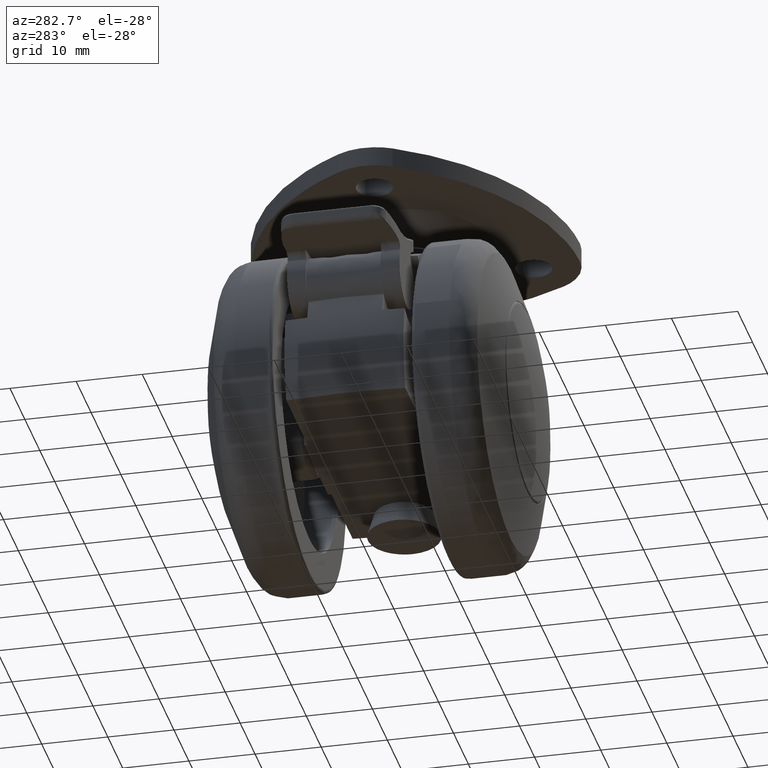
[diagram: clean part render]
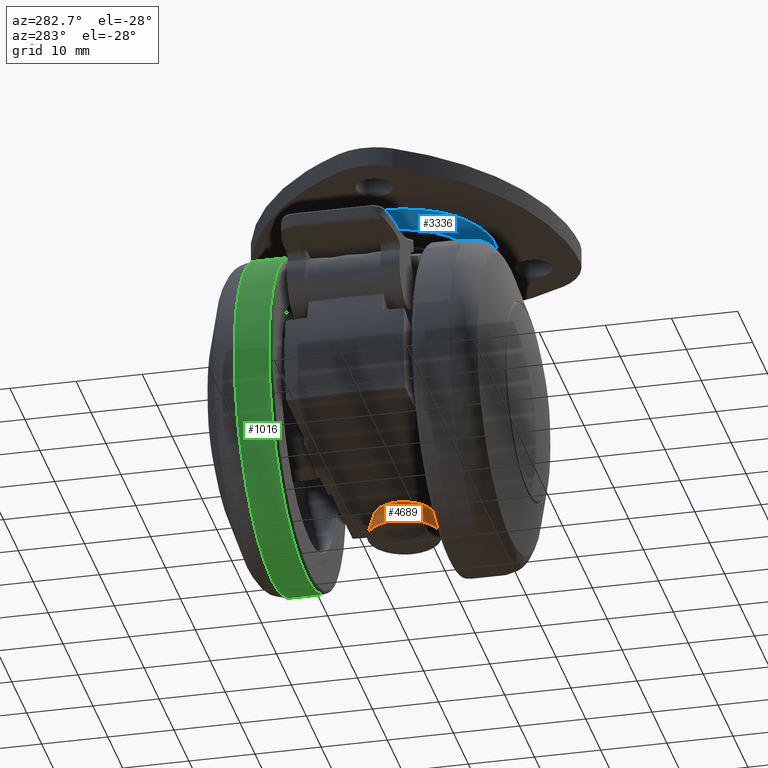
[diagram: same view with three faces highlighted in distinct colors, each labeled with its STEP entity id]
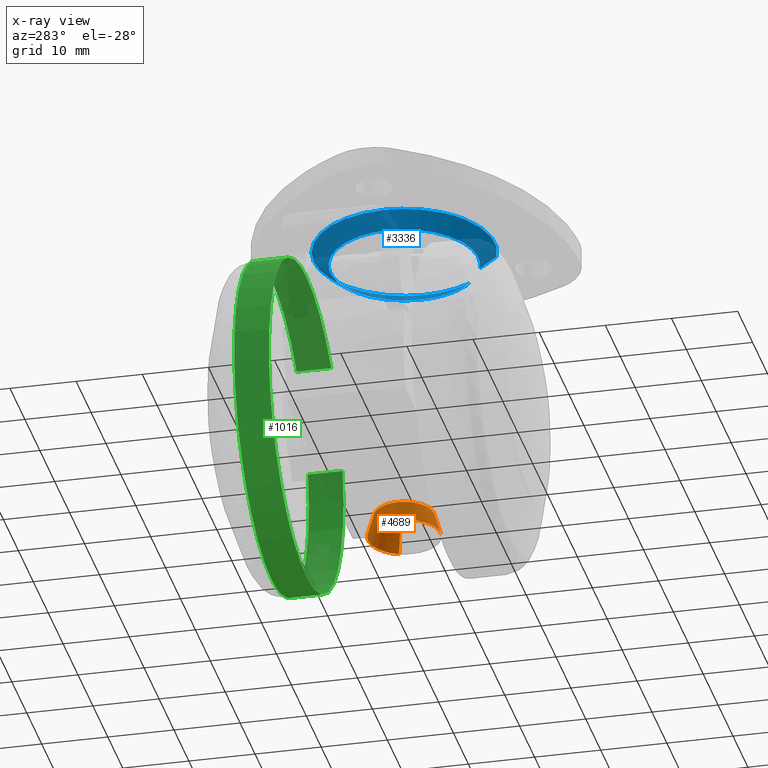
[diagram: x-ray of the same camera — body ghosted, the three highlighted faces saturated]
A machine part, auxiliary view with three faces highlighted in distinct colors.
The next image is the same camera in x-ray (body ghosted, the three faces saturated) — at least one of them is partly hidden behind the body in this view.
Their STEP definitions:

[orange] entity #4689 — the highlighted face is a freeform B-spline surface patch.
#4507=CARTESIAN_POINT('',(21.212646178468539,1.582277922034677,-7.499996596262411));
#4508=VERTEX_POINT('',#4507);
#4524=CARTESIAN_POINT('',(17.274718427916540,-4.491606592897810,-7.500000000000411));
#4525=VERTEX_POINT('',#4524);
#4539=CARTESIAN_POINT('',(17.335766967601611,-5.489741391318247,-11.000000000027489));
#4540=VERTEX_POINT('',#4539);
#4541=CARTESIAN_POINT('',(17.274718427916540,-4.491606592897810,-7.500000000000411));
#4542=CARTESIAN_POINT('',(17.335766967601611,-5.489741391318247,-11.000000000027489));
#4543=QUASI_UNIFORM_CURVE('',1,(#4541,#4542),.UNSPECIFIED.,.F.,.U.);
#4544=EDGE_CURVE('',#4525,#4540,#4543,.T.);
#4561=CARTESIAN_POINT('',(22.148789683261999,1.933898859183989,-11.000000000006230));
#4562=VERTEX_POINT('',#4561);
#4576=CARTESIAN_POINT('',(21.212646178468539,1.582277922034677,-7.499996596262411));
#4577=CARTESIAN_POINT('',(22.148789683261999,1.933898859183989,-11.000000000006230));
#4578=QUASI_UNIFORM_CURVE('',1,(#4576,#4577),.UNSPECIFIED.,.F.,.U.);
#4579=EDGE_CURVE('',#4508,#4562,#4578,.T.);
#4584=CARTESIAN_POINT('',(17.273192214418490,-4.466653222937858,-7.412500000000419));
#4585=CARTESIAN_POINT('',(12.806538991480631,-4.739845437356344,-7.412500000000419));
#4586=CARTESIAN_POINT('',(12.533346777062141,-0.273192214418488,-7.412500000000419));
#4587=CARTESIAN_POINT('',(12.260154562643658,4.193461008519368,-7.412500000000419));
#4588=CARTESIAN_POINT('',(16.726807785581510,4.466653222937853,-7.412500000000419));
#4589=CARTESIAN_POINT('',(20.026753878568716,4.668486572340305,-7.412500000000420));
#4590=CARTESIAN_POINT('',(21.189242515025537,1.573490435402284,-7.412500000000420));
#4591=CARTESIAN_POINT('',(17.337331336267290,-5.515318595529712,-11.089687499999989));
#4592=CARTESIAN_POINT('',(11.822012740737577,-5.852649931796999,-11.089687499999991));
#4593=CARTESIAN_POINT('',(11.484681404470290,-0.337331336267290,-11.089687499999989));
#4594=CARTESIAN_POINT('',(11.147350068203004,5.177987259262419,-11.089687499999991));
#4595=CARTESIAN_POINT('',(16.662668663732710,5.515318595529707,-11.089687499999989));
#4596=CARTESIAN_POINT('',(20.737364670450489,5.764537679617282,-11.089687499999993));
#4597=CARTESIAN_POINT('',(22.172778362477651,1.942909069747387,-11.089687499999988));
#4605=(BOUNDED_SURFACE()B_SPLINE_SURFACE(2,1,((#4584,#4591),(#4585,#4592),(#4586,#4593),(#4587,#4594),(#4588,#4595),(#4589,#4596),(#4590,#4597)),.UNSPECIFIED.,.F.,.F.,.U.)B_SPLINE_SURFACE_WITH_KNOTS((3,2,2,3),(2,2),(0.0,9.155155262351137,18.310310524702270,25.634434734583181),(0.0,3.824332726212229),.UNSPECIFIED.)GEOMETRIC_REPRESENTATION_ITEM()RATIONAL_B_SPLINE_SURFACE(((1.0,1.0),(0.707106781186548,0.707106781186548),(1.0,1.0),(0.707106781186548,0.707106781186548),(1.0,1.0),(0.765685424949238,0.765685424949238),(0.906274169979695,0.906274169979695)))REPRESENTATION_ITEM('')SURFACE());
#4606=CARTESIAN_POINT('',(16.468845944015040,4.468542868632984,-7.500000000000411));
#4607=VERTEX_POINT('',#4606);
#4608=CARTESIAN_POINT('',(16.468845944015044,4.468542868632984,-7.500000000000411));
#4609=CARTESIAN_POINT('',(16.733491427178524,4.499999987087755,-7.499999871438423));
#4610=CARTESIAN_POINT('',(16.999999928312619,4.499999973067092,-7.499999731878273));
#4611=CARTESIAN_POINT('',(20.116744743639103,4.499999809099221,-7.499998099760081));
#4612=CARTESIAN_POINT('',(21.212646178468539,1.582277922034677,-7.499996596262411));
#4620=(BOUNDED_CURVE()B_SPLINE_CURVE(2,(#4608,#4609,#4610,#4611,#4612),.UNSPECIFIED.,.F.,.U.)B_SPLINE_CURVE_WITH_KNOTS((3,2,3),(0.229562473513409,0.250000000000000,0.440284269163032),.UNSPECIFIED.)CURVE()GEOMETRIC_REPRESENTATION_ITEM()RATIONAL_B_SPLINE_CURVE((0.956026754183505,0.976055948331029,1.0,0.777068111661096,0.893499674887817))REPRESENTATION_ITEM(''));
#4621=EDGE_CURVE('',#4607,#4508,#4620,.T.);
#4622=ORIENTED_EDGE('',*,*,#4621,.T.);
#4623=ORIENTED_EDGE('',*,*,#4579,.T.);
#4624=CARTESIAN_POINT('',(11.500000000000110,-2.755364E-015,-11.0));
#4625=VERTEX_POINT('',#4624);
#4626=CARTESIAN_POINT('',(11.500000000000110,-2.755364E-015,-11.0));
#4627=CARTESIAN_POINT('',(11.500000000000110,5.499999999999888,-11.0));
#4628=CARTESIAN_POINT('',(17.0,5.499999999999887,-11.0));
#4629=CARTESIAN_POINT('',(20.809352776272192,5.499999999999887,-11.0));
#4630=CARTESIAN_POINT('',(22.148789683261999,1.933898859183988,-11.000000000006228));
#4638=(BOUNDED_CURVE()B_SPLINE_CURVE(2,(#4626,#4627,#4628,#4629,#4630),.UNSPECIFIED.,.F.,.U.)B_SPLINE_CURVE_WITH_KNOTS((3,2,3),(0.0,0.250000000000000,0.440284170897084),.UNSPECIFIED.)CURVE()GEOMETRIC_REPRESENTATION_ITEM()RATIONAL_B_SPLINE_CURVE((1.0,0.707106781186548,1.0,0.777068226786816,0.893499554633531))REPRESENTATION_ITEM(''));
#4639=EDGE_CURVE('',#4625,#4562,#4638,.T.);
#4640=ORIENTED_EDGE('',*,*,#4639,.F.);
#4641=CARTESIAN_POINT('',(17.335766967601604,-5.489741391318248,-11.000000000027487));
#4642=CARTESIAN_POINT('',(17.168040198302108,-5.499999999999893,-11.0));
#4643=CARTESIAN_POINT('',(17.0,-5.499999999999893,-11.0));
#4644=CARTESIAN_POINT('',(11.500000000000110,-5.499999999999893,-11.0));
#4645=CARTESIAN_POINT('',(11.500000000000110,-2.755364E-015,-11.0));
#4653=(BOUNDED_CURVE()B_SPLINE_CURVE(2,(#4641,#4642,#4643,#4644,#4645),.UNSPECIFIED.,.F.,.U.)B_SPLINE_CURVE_WITH_KNOTS((3,2,3),(0.739332962231947,0.750000000000000,1.0),.UNSPECIFIED.)CURVE()GEOMETRIC_REPRESENTATION_ITEM()RATIONAL_B_SPLINE_CURVE((0.976072041651724,0.987502787891641,1.0,0.707106781186548,1.0))REPRESENTATION_ITEM(''));
#4654=EDGE_CURVE('',#4540,#4625,#4653,.T.);
#4655=ORIENTED_EDGE('',*,*,#4654,.F.);
#4656=ORIENTED_EDGE('',*,*,#4544,.F.);
#4657=CARTESIAN_POINT('',(12.500000000000000,-2.755364E-015,-7.500000000000410));
#4658=VERTEX_POINT('',#4657);
#4659=CARTESIAN_POINT('',(17.274718427916540,-4.491606592897810,-7.500000000000411));
#4660=CARTESIAN_POINT('',(17.137487434863061,-4.500000000000004,-7.500000000000410));
#4661=CARTESIAN_POINT('',(17.0,-4.500000000000003,-7.500000000000410));
#4662=CARTESIAN_POINT('',(12.499999999999998,-4.500000000000004,-7.500000000000410));
#4663=CARTESIAN_POINT('',(12.500000000000000,-2.755364E-015,-7.500000000000410));
#4671=(BOUNDED_CURVE()B_SPLINE_CURVE(2,(#4659,#4660,#4661,#4662,#4663),.UNSPECIFIED.,.F.,.U.)B_SPLINE_CURVE_WITH_KNOTS((3,2,3),(0.739332962240481,0.750000000000000,1.0),.UNSPECIFIED.)CURVE()GEOMETRIC_REPRESENTATION_ITEM()RATIONAL_B_SPLINE_CURVE((0.976072041670013,0.987502787901639,1.0,0.707106781186547,1.0))REPRESENTATION_ITEM(''));
#4672=EDGE_CURVE('',#4525,#4658,#4671,.T.);
#4673=ORIENTED_EDGE('',*,*,#4672,.T.);
#4674=CARTESIAN_POINT('',(12.500000000000000,-2.755364E-015,-7.500000000000410));
#4675=CARTESIAN_POINT('',(12.500000000000000,3.996785366727927,-7.500000000000410));
#4676=CARTESIAN_POINT('',(16.468845944015040,4.468542868632984,-7.500000000000411));
#4684=(BOUNDED_CURVE()B_SPLINE_CURVE(2,(#4674,#4675,#4676),.UNSPECIFIED.,.F.,.U.)B_SPLINE_CURVE_WITH_KNOTS((3,3),(0.0,0.229562473513409),.UNSPECIFIED.)CURVE()GEOMETRIC_REPRESENTATION_ITEM()RATIONAL_B_SPLINE_CURVE((1.0,0.731050832855518,0.956026754183505))REPRESENTATION_ITEM(''));
#4685=EDGE_CURVE('',#4658,#4607,#4684,.T.);
#4686=ORIENTED_EDGE('',*,*,#4685,.T.);
#4687=EDGE_LOOP('',(#4622,#4623,#4640,#4655,#4656,#4673,#4686));
#4688=FACE_OUTER_BOUND('',#4687,.T.);
#4689=ADVANCED_FACE('',(#4688),#4605,.T.);

[blue] entity #3336 — the highlighted face is a freeform B-spline surface patch.
#3136=CARTESIAN_POINT('',(26.403887196713512,-5.919918080743028,34.357549545205494));
#3137=CARTESIAN_POINT('',(29.207983623120874,-1.465564807102363,34.357549545205508));
#3138=CARTESIAN_POINT('',(27.537856966151931,3.525917618456758,34.357549545205508));
#3139=CARTESIAN_POINT('',(24.011939347695172,14.063774584608689,34.357549545205508));
#3140=CARTESIAN_POINT('',(13.474082381543241,10.537856966151930,34.357549545205508));
#3141=CARTESIAN_POINT('',(2.936225415391313,7.011939347695170,34.357549545205508));
#3142=CARTESIAN_POINT('',(6.462143033848072,-3.525917618456758,34.357549545205508));
#3143=CARTESIAN_POINT('',(9.988060652304831,-14.063774584608689,34.357549545205508));
#3144=CARTESIAN_POINT('',(20.525917618456759,-10.537856966151930,34.357549545205508));
#3145=CARTESIAN_POINT('',(28.641494373891039,-7.328532508870477,36.584129558004648));
#3146=CARTESIAN_POINT('',(32.112811297309435,-1.814288506397388,36.584129558004655));
#3147=CARTESIAN_POINT('',(30.045286488251300,4.364891800532531,36.584129558004648));
#3148=CARTESIAN_POINT('',(25.680394687718778,17.410178288783833,36.584129558004648));
#3149=CARTESIAN_POINT('',(12.635108199467471,13.045286488251300,36.584129558004648));
#3150=CARTESIAN_POINT('',(-0.410178288783834,8.680394687718772,36.584129558004648));
#3151=CARTESIAN_POINT('',(3.954713511748697,-4.364891800532531,36.584129558004648));
#3152=CARTESIAN_POINT('',(8.319605312281230,-17.410178288783833,36.584129558004648));
#3153=CARTESIAN_POINT('',(21.364891800532529,-13.045286488251300,36.584129558004648));
#3161=(BOUNDED_SURFACE()B_SPLINE_SURFACE(2,1,((#3136,#3145),(#3137,#3146),(#3138,#3147),(#3139,#3148),(#3140,#3149),(#3141,#3150),(#3142,#3151),(#3143,#3152),(#3144,#3153)),.UNSPECIFIED.,.F.,.F.,.U.)B_SPLINE_SURFACE_WITH_KNOTS((3,2,2,2,3),(2,2),(0.0,12.763487878571180,35.555430518876847,58.347373159182517,81.139315799488188),(0.0,3.456694814397395),.UNSPECIFIED.)GEOMETRIC_REPRESENTATION_ITEM()RATIONAL_B_SPLINE_SURFACE(((0.855662221768731,0.855662221768731),(0.835979797464467,0.835979797464467),(1.0,1.0),(0.707106781186548,0.707106781186548),(1.0,1.0),(0.707106781186548,0.707106781186548),(1.0,1.0),(0.707106781186548,0.707106781186548),(1.0,1.0)))REPRESENTATION_ITEM('')SURFACE());
#3162=CARTESIAN_POINT('',(26.457131865014560,-5.953436568243797,34.410531818202607));
#3163=VERTEX_POINT('',#3162);
#3164=CARTESIAN_POINT('',(28.175005596610639,0.0,34.410531818198947));
#3165=VERTEX_POINT('',#3164);
#3166=CARTESIAN_POINT('',(26.457131865014553,-5.953436568243797,34.410531818202621));
#3167=CARTESIAN_POINT('',(28.175005596610649,-3.224565903256855,34.410531818198947));
#3168=CARTESIAN_POINT('',(28.175005596610639,0.0,34.410531818198947));
#3176=(BOUNDED_CURVE()B_SPLINE_CURVE(2,(#3166,#3167,#3168),.UNSPECIFIED.,.F.,.U.)B_SPLINE_CURVE_WITH_KNOTS((3,3),(0.408873249228883,0.500000000000000),.UNSPECIFIED.)CURVE()GEOMETRIC_REPRESENTATION_ITEM()RATIONAL_B_SPLINE_CURVE((0.864307464336916,0.893238370586545,1.0))REPRESENTATION_ITEM(''));
#3177=EDGE_CURVE('',#3163,#3165,#3176,.T.);
#3178=ORIENTED_EDGE('',*,*,#3177,.T.);
#3179=CARTESIAN_POINT('',(9.985545524765087,8.699320576533458,34.410531817979063));
#3180=VERTEX_POINT('',#3179);
#3181=CARTESIAN_POINT('',(28.175005596610639,0.0,34.410531818198947));
#3182=CARTESIAN_POINT('',(28.175005596610639,11.175005596610639,34.410531818198947));
#3183=CARTESIAN_POINT('',(17.0,11.175005596610641,34.410531818198947));
#3184=CARTESIAN_POINT('',(13.055888016705632,11.175005596610641,34.410531818198962));
#3185=CARTESIAN_POINT('',(9.985545524765087,8.699320576533458,34.410531817979063));
#3193=(BOUNDED_CURVE()B_SPLINE_CURVE(2,(#3181,#3182,#3183,#3184,#3185),.UNSPECIFIED.,.F.,.U.)B_SPLINE_CURVE_WITH_KNOTS((3,2,3),(0.500000000000000,0.750000000000000,0.858867648264642),.UNSPECIFIED.)CURVE()GEOMETRIC_REPRESENTATION_ITEM()RATIONAL_B_SPLINE_CURVE((1.0,0.707106781186547,1.0,0.872453616300472,0.855992631305163))REPRESENTATION_ITEM(''));
#3194=EDGE_CURVE('',#3165,#3180,#3193,.T.);
#3195=ORIENTED_EDGE('',*,*,#3194,.T.);
#3196=CARTESIAN_POINT('',(5.824994403389360,0.0,34.410531818198947));
#3197=VERTEX_POINT('',#3196);
#3198=CARTESIAN_POINT('',(9.985545524765087,8.699320576533458,34.410531817979056));
#3199=CARTESIAN_POINT('',(5.824994403389360,5.344576240660055,34.410531818198947));
#3200=CARTESIAN_POINT('',(5.824994403389360,0.0,34.410531818198947));
#3208=(BOUNDED_CURVE()B_SPLINE_CURVE(2,(#3198,#3199,#3200),.UNSPECIFIED.,.F.,.U.)B_SPLINE_CURVE_WITH_KNOTS((3,3),(0.858867648264641,1.0),.UNSPECIFIED.)CURVE()GEOMETRIC_REPRESENTATION_ITEM()RATIONAL_B_SPLINE_CURVE((0.855992631305163,0.834653164886074,1.0))REPRESENTATION_ITEM(''));
#3209=EDGE_CURVE('',#3180,#3197,#3208,.T.);
#3210=ORIENTED_EDGE('',*,*,#3209,.T.);
#3211=CARTESIAN_POINT('',(7.913745881668236,-6.505438968679894,34.410531817966941));
#3212=VERTEX_POINT('',#3211);
#3213=CARTESIAN_POINT('',(5.824994403389360,0.0,34.410531818198947));
#3214=CARTESIAN_POINT('',(5.824994403389360,-3.588045260163343,34.410531818198940));
#3215=CARTESIAN_POINT('',(7.913745881668235,-6.505438968679895,34.410531817966941));
#3223=(BOUNDED_CURVE()B_SPLINE_CURVE(2,(#3213,#3214,#3215),.UNSPECIFIED.,.F.,.U.)B_SPLINE_CURVE_WITH_KNOTS((3,3),(0.0,0.100192975578352),.UNSPECIFIED.)CURVE()GEOMETRIC_REPRESENTATION_ITEM()RATIONAL_B_SPLINE_CURVE((1.0,0.882616627521435,0.859321170019266))REPRESENTATION_ITEM(''));
#3224=EDGE_CURVE('',#3197,#3212,#3223,.T.);
#3225=ORIENTED_EDGE('',*,*,#3224,.T.);
#3226=CARTESIAN_POINT('',(20.545881311159601,-10.597522154327059,34.410531818199132));
#3227=VERTEX_POINT('',#3226);
#3228=CARTESIAN_POINT('',(7.913745881668235,-6.505438968679895,34.410531817966941));
#3229=CARTESIAN_POINT('',(11.256991658187072,-11.175005596610639,34.410531818198947));
#3230=CARTESIAN_POINT('',(17.0,-11.175005596610641,34.410531818198947));
#3231=CARTESIAN_POINT('',(18.819965230975185,-11.175005596610644,34.410531818198947));
#3232=CARTESIAN_POINT('',(20.545881311159604,-10.597522154327063,34.410531818199139));
#3240=(BOUNDED_CURVE()B_SPLINE_CURVE(2,(#3228,#3229,#3230,#3231,#3232),.UNSPECIFIED.,.F.,.U.)B_SPLINE_CURVE_WITH_KNOTS((3,2,3),(0.100192975578352,0.250000000000000,0.303941020746011),.UNSPECIFIED.)CURVE()GEOMETRIC_REPRESENTATION_ITEM()RATIONAL_B_SPLINE_CURVE((0.859321170019266,0.824490153665112,1.0,0.936804163230471,0.900879109998915))REPRESENTATION_ITEM(''));
#3241=EDGE_CURVE('',#3212,#3227,#3240,.T.);
#3242=ORIENTED_EDGE('',*,*,#3241,.T.);
#3243=CARTESIAN_POINT('',(21.344429015192819,-12.984129669330381,36.529822727269192));
#3244=VERTEX_POINT('',#3243);
#3245=CARTESIAN_POINT('',(20.545881311159601,-10.597522154327059,34.410531818199132));
#3246=CARTESIAN_POINT('',(21.344429015192819,-12.984129669330381,36.529822727269192));
#3247=QUASI_UNIFORM_CURVE('',1,(#3245,#3246),.UNSPECIFIED.,.F.,.U.);
#3248=EDGE_CURVE('',#3227,#3244,#3247,.T.);
#3249=ORIENTED_EDGE('',*,*,#3248,.T.);
#3250=CARTESIAN_POINT('',(5.867482419215962,-7.970491772100814,36.529822728424179));
#3251=VERTEX_POINT('',#3250);
#3252=CARTESIAN_POINT('',(21.344429015192826,-12.984129669330384,36.529822727269192));
#3253=CARTESIAN_POINT('',(19.229829219395782,-13.691664863630084,36.529822727266968));
#3254=CARTESIAN_POINT('',(17.0,-13.691664863630081,36.529822727266946));
#3255=CARTESIAN_POINT('',(9.963641508225006,-13.691664863630088,36.529822727266954));
#3256=CARTESIAN_POINT('',(5.867482419215962,-7.970491772100814,36.529822728424186));
#3264=(BOUNDED_CURVE()B_SPLINE_CURVE(2,(#3252,#3253,#3254,#3255,#3256),.UNSPECIFIED.,.F.,.U.)B_SPLINE_CURVE_WITH_KNOTS((3,2,3),(0.196058979253457,0.250000000000000,0.399807024421978),.UNSPECIFIED.)CURVE()GEOMETRIC_REPRESENTATION_ITEM()RATIONAL_B_SPLINE_CURVE((0.900879109998206,0.936804163229847,1.0,0.824490153664726,0.859321170019419))REPRESENTATION_ITEM(''));
#3265=EDGE_CURVE('',#3244,#3251,#3264,.T.);
#3266=ORIENTED_EDGE('',*,*,#3265,.T.);
#3267=CARTESIAN_POINT('',(3.308335136369921,0.0,36.529822727266946));
#3268=VERTEX_POINT('',#3267);
#3269=CARTESIAN_POINT('',(5.867482419215962,-7.970491772100814,36.529822728424186));
#3270=CARTESIAN_POINT('',(3.308335136369922,-4.396088466605304,36.529822727266946));
#3271=CARTESIAN_POINT('',(3.308335136369921,0.0,36.529822727266946));
#3279=(BOUNDED_CURVE()B_SPLINE_CURVE(2,(#3269,#3270,#3271),.UNSPECIFIED.,.F.,.U.)B_SPLINE_CURVE_WITH_KNOTS((3,3),(0.399807024421978,0.500000000000000),.UNSPECIFIED.)CURVE()GEOMETRIC_REPRESENTATION_ITEM()RATIONAL_B_SPLINE_CURVE((0.859321170019419,0.882616627521821,1.0))REPRESENTATION_ITEM(''));
#3280=EDGE_CURVE('',#3251,#3268,#3279,.T.);
#3281=ORIENTED_EDGE('',*,*,#3280,.T.);
#3282=CARTESIAN_POINT('',(8.405860243021648,10.658444942482660,36.529822727772768));
#3283=VERTEX_POINT('',#3282);
#3284=CARTESIAN_POINT('',(3.308335136369921,0.0,36.529822727266946));
#3285=CARTESIAN_POINT('',(3.308335136369923,6.548197769840038,36.529822727266954));
#3286=CARTESIAN_POINT('',(8.405860243021648,10.658444942482657,36.529822727772768));
#3294=(BOUNDED_CURVE()B_SPLINE_CURVE(2,(#3284,#3285,#3286),.UNSPECIFIED.,.F.,.U.)B_SPLINE_CURVE_WITH_KNOTS((3,3),(0.500000000000000,0.641132351736064),.UNSPECIFIED.)CURVE()GEOMETRIC_REPRESENTATION_ITEM()RATIONAL_B_SPLINE_CURVE((1.0,0.834653164885247,0.855992631305377))REPRESENTATION_ITEM(''));
#3295=EDGE_CURVE('',#3268,#3283,#3294,.T.);
#3296=ORIENTED_EDGE('',*,*,#3295,.T.);
#3297=CARTESIAN_POINT('',(30.691664863630081,0.0,36.529822727266946));
#3298=VERTEX_POINT('',#3297);
#3299=CARTESIAN_POINT('',(8.405860243021648,10.658444942482655,36.529822727772768));
#3300=CARTESIAN_POINT('',(12.167657054608439,13.691664863630081,36.529822727266954));
#3301=CARTESIAN_POINT('',(17.0,13.691664863630081,36.529822727266946));
#3302=CARTESIAN_POINT('',(30.691664863630077,13.691664863630079,36.529822727266954));
#3303=CARTESIAN_POINT('',(30.691664863630081,0.0,36.529822727266946));
#3311=(BOUNDED_CURVE()B_SPLINE_CURVE(2,(#3299,#3300,#3301,#3302,#3303),.UNSPECIFIED.,.F.,.U.)B_SPLINE_CURVE_WITH_KNOTS((3,2,3),(0.641132351736063,0.750000000000000,1.0),.UNSPECIFIED.)CURVE()GEOMETRIC_REPRESENTATION_ITEM()RATIONAL_B_SPLINE_CURVE((0.855992631305377,0.872453616301299,1.0,0.707106781186547,1.0))REPRESENTATION_ITEM(''));
#3312=EDGE_CURVE('',#3283,#3298,#3311,.T.);
#3313=ORIENTED_EDGE('',*,*,#3312,.T.);
#3314=CARTESIAN_POINT('',(28.586918587885592,-7.294176058731744,36.529822727270087));
#3315=VERTEX_POINT('',#3314);
#3316=CARTESIAN_POINT('',(30.691664863630081,0.0,36.529822727266946));
#3317=CARTESIAN_POINT('',(30.691664863630084,-3.950751997038950,36.529822727266954));
#3318=CARTESIAN_POINT('',(28.586918587885595,-7.294176058731744,36.529822727270087));
#3326=(BOUNDED_CURVE()B_SPLINE_CURVE(2,(#3316,#3317,#3318),.UNSPECIFIED.,.F.,.U.)B_SPLINE_CURVE_WITH_KNOTS((3,3),(0.0,0.091126750770471),.UNSPECIFIED.)CURVE()GEOMETRIC_REPRESENTATION_ITEM()RATIONAL_B_SPLINE_CURVE((1.0,0.893238370587302,0.864307464337326))REPRESENTATION_ITEM(''));
#3327=EDGE_CURVE('',#3298,#3315,#3326,.T.);
#3328=ORIENTED_EDGE('',*,*,#3327,.T.);
#3329=CARTESIAN_POINT('',(26.457131865014560,-5.953436568243797,34.410531818202607));
#3330=CARTESIAN_POINT('',(28.586918587885592,-7.294176058731744,36.529822727270087));
#3331=QUASI_UNIFORM_CURVE('',1,(#3329,#3330),.UNSPECIFIED.,.F.,.U.);
#3332=EDGE_CURVE('',#3163,#3315,#3331,.T.);
#3333=ORIENTED_EDGE('',*,*,#3332,.F.);
#3334=EDGE_LOOP('',(#3178,#3195,#3210,#3225,#3242,#3249,#3266,#3281,#3296,#3313,#3328,#3333));
#3335=FACE_OUTER_BOUND('',#3334,.T.);
#3336=ADVANCED_FACE('',(#3335),#3161,.T.);

[green] entity #1016 — the highlighted face is a freeform B-spline surface patch.
#816=CARTESIAN_POINT('',(-24.456277193517327,-10.868760374954357,5.185605638095166));
#817=CARTESIAN_POINT('',(-27.125405001298383,-10.868760374954357,-7.402495750192665));
#818=CARTESIAN_POINT('',(-18.431933420253088,-10.868760374954361,-16.889755190391501));
#819=CARTESIAN_POINT('',(-1.542178229861583,-10.868760374954357,-35.321688610644600));
#820=CARTESIAN_POINT('',(16.889755190391512,-10.868760374954361,-18.431933420253088));
#821=CARTESIAN_POINT('',(35.321688610644600,-10.868760374954357,-1.542178229861581));
#822=CARTESIAN_POINT('',(18.431933420253088,-10.868760374954361,16.889755190391512));
#823=CARTESIAN_POINT('',(1.542178229861583,-10.868760374954357,35.321688610644600));
#824=CARTESIAN_POINT('',(-16.889755190391512,-10.868760374954361,18.431933420253099));
#825=CARTESIAN_POINT('',(-24.456277193517327,-16.384105615660754,5.185605638095166));
#826=CARTESIAN_POINT('',(-27.125405001298383,-16.384105615660754,-7.402495750192665));
#827=CARTESIAN_POINT('',(-18.431933420253088,-16.384105615660751,-16.889755190391501));
#828=CARTESIAN_POINT('',(-1.542178229861583,-16.384105615660761,-35.321688610644600));
#829=CARTESIAN_POINT('',(16.889755190391512,-16.384105615660751,-18.431933420253088));
#830=CARTESIAN_POINT('',(35.321688610644600,-16.384105615660761,-1.542178229861581));
#831=CARTESIAN_POINT('',(18.431933420253088,-16.384105615660751,16.889755190391512));
#832=CARTESIAN_POINT('',(1.542178229861583,-16.384105615660761,35.321688610644600));
#833=CARTESIAN_POINT('',(-16.889755190391512,-16.384105615660751,18.431933420253099));
#841=(BOUNDED_SURFACE()B_SPLINE_SURFACE(2,1,((#816,#825),(#817,#826),(#818,#827),(#819,#828),(#820,#829),(#821,#830),(#822,#831),(#823,#832),(#824,#833)),.UNSPECIFIED.,.F.,.F.,.U.)B_SPLINE_SURFACE_WITH_KNOTS((3,2,2,2,3),(2,2),(0.0,24.852813742385699,66.274169979695202,107.695526217004700,149.116882454314210),(0.0,5.515345240706400),.UNSPECIFIED.)GEOMETRIC_REPRESENTATION_ITEM()RATIONAL_B_SPLINE_SURFACE(((0.859411254969543,0.859411254969543),(0.824264068711928,0.824264068711928),(1.0,1.0),(0.707106781186548,0.707106781186548),(1.0,1.0),(0.707106781186548,0.707106781186548),(1.0,1.0),(0.707106781186548,0.707106781186548),(1.0,1.0)))REPRESENTATION_ITEM('')SURFACE());
#842=CARTESIAN_POINT('',(-24.456279230536150,-10.999999999964761,5.185596031117166));
#843=VERTEX_POINT('',#842);
#844=CARTESIAN_POINT('',(-24.998026105095359,-10.999999999956289,0.314150997086708));
#845=VERTEX_POINT('',#844);
#846=CARTESIAN_POINT('',(-24.456279230536150,-10.999999999964761,5.185596031117166));
#847=CARTESIAN_POINT('',(-24.967080987085478,-10.999999999960654,2.776555620986991));
#848=CARTESIAN_POINT('',(-24.998026105095363,-10.999999999956293,0.314150997086708));
#856=(BOUNDED_CURVE()B_SPLINE_CURVE(2,(#846,#847,#848),.UNSPECIFIED.,.F.,.U.)B_SPLINE_CURVE_WITH_KNOTS((3,3),(0.714472189735848,0.747784295921687),.UNSPECIFIED.)CURVE()GEOMETRIC_REPRESENTATION_ITEM()RATIONAL_B_SPLINE_CURVE((0.928583473766521,0.956518523810324,0.994854295643917))REPRESENTATION_ITEM(''));
#857=EDGE_CURVE('',#843,#845,#856,.T.);
#858=ORIENTED_EDGE('',*,*,#857,.T.);
#859=CARTESIAN_POINT('',(0.0,-11.0,-25.0));
#860=VERTEX_POINT('',#859);
#861=CARTESIAN_POINT('',(-24.998026105095359,-10.999999999956293,0.314150997086708));
#862=CARTESIAN_POINT('',(-24.999999999999996,-11.000000000000004,0.157081699800146));
#863=CARTESIAN_POINT('',(-25.0,-11.0,1.789254E-015));
#864=CARTESIAN_POINT('',(-25.000000000000004,-11.0,-25.000000000000004));
#865=CARTESIAN_POINT('',(0.0,-11.0,-25.0));
#873=(BOUNDED_CURVE()B_SPLINE_CURVE(2,(#861,#862,#863,#864,#865),.UNSPECIFIED.,.F.,.U.)B_SPLINE_CURVE_WITH_KNOTS((3,2,3),(0.747784295921687,0.750000000000000,1.0),.UNSPECIFIED.)CURVE()GEOMETRIC_REPRESENTATION_ITEM()RATIONAL_B_SPLINE_CURVE((0.994854295643918,0.997404141202260,1.0,0.707106781186547,1.0))REPRESENTATION_ITEM(''));
#874=EDGE_CURVE('',#845,#860,#873,.T.);
#875=ORIENTED_EDGE('',*,*,#874,.T.);
#876=CARTESIAN_POINT('',(24.939141846008731,-10.999999999974751,-1.743331289415805));
#877=VERTEX_POINT('',#876);
#878=CARTESIAN_POINT('',(0.0,-11.0,-25.0));
#879=CARTESIAN_POINT('',(23.313421181609719,-11.0,-24.999999999999993));
#880=CARTESIAN_POINT('',(24.939141846008734,-10.999999999974751,-1.743331289415806));
#888=(BOUNDED_CURVE()B_SPLINE_CURVE(2,(#878,#879,#880),.UNSPECIFIED.,.F.,.U.)B_SPLINE_CURVE_WITH_KNOTS((3,3),(0.0,0.237833686534724),.UNSPECIFIED.)CURVE()GEOMETRIC_REPRESENTATION_ITEM()RATIONAL_B_SPLINE_CURVE((1.0,0.721360504034300,0.972879876386199))REPRESENTATION_ITEM(''));
#889=EDGE_CURVE('',#860,#877,#888,.T.);
#890=ORIENTED_EDGE('',*,*,#889,.T.);
#891=CARTESIAN_POINT('',(0.0,-11.0,25.0));
#892=VERTEX_POINT('',#891);
#893=CARTESIAN_POINT('',(24.939141846008731,-10.999999999974753,-1.743331289415805));
#894=CARTESIAN_POINT('',(25.000000000000004,-10.999999999999996,-0.872727896897664));
#895=CARTESIAN_POINT('',(25.0,-11.0,1.789254E-015));
#896=CARTESIAN_POINT('',(25.000000000000004,-11.0,25.000000000000004));
#897=CARTESIAN_POINT('',(0.0,-11.0,25.0));
#905=(BOUNDED_CURVE()B_SPLINE_CURVE(2,(#893,#894,#895,#896,#897),.UNSPECIFIED.,.F.,.U.)B_SPLINE_CURVE_WITH_KNOTS((3,2,3),(0.237833686534724,0.250000000000000,0.500000000000000),.UNSPECIFIED.)CURVE()GEOMETRIC_REPRESENTATION_ITEM()RATIONAL_B_SPLINE_CURVE((0.972879876386198,0.985746277152248,1.0,0.707106781186547,1.0))REPRESENTATION_ITEM(''));
#906=EDGE_CURVE('',#877,#892,#905,.T.);
#907=ORIENTED_EDGE('',*,*,#906,.T.);
#908=CARTESIAN_POINT('',(-16.889754628578689,-10.999999999988360,18.431933935059281));
#909=VERTEX_POINT('',#908);
#910=CARTESIAN_POINT('',(0.0,-11.0,25.0));
#911=CARTESIAN_POINT('',(-9.721967419078391,-11.0,25.000000000000007));
#912=CARTESIAN_POINT('',(-16.889754628578697,-10.999999999988358,18.431933935059281));
#920=(BOUNDED_CURVE()B_SPLINE_CURVE(2,(#910,#911,#912),.UNSPECIFIED.,.F.,.U.)B_SPLINE_CURVE_WITH_KNOTS((3,3),(0.500000000000000,0.618415199881416),.UNSPECIFIED.)CURVE()GEOMETRIC_REPRESENTATION_ITEM()RATIONAL_B_SPLINE_CURVE((1.0,0.861267963801174,0.853959781973867))REPRESENTATION_ITEM(''));
#921=EDGE_CURVE('',#892,#909,#920,.T.);
#922=ORIENTED_EDGE('',*,*,#921,.T.);
#923=CARTESIAN_POINT('',(-16.889754636638401,-16.249584999999950,18.431933927674301));
#924=VERTEX_POINT('',#923);
#925=CARTESIAN_POINT('',(-16.889754628578689,-10.999999999988360,18.431933935059281));
#926=CARTESIAN_POINT('',(-16.889754636638401,-16.249584999999950,18.431933927674301));
#927=QUASI_UNIFORM_CURVE('',1,(#925,#926),.UNSPECIFIED.,.F.,.U.);
#928=EDGE_CURVE('',#909,#924,#927,.T.);
#929=ORIENTED_EDGE('',*,*,#928,.T.);
#930=CARTESIAN_POINT('',(0.0,-16.249584999999950,25.0));
#931=VERTEX_POINT('',#930);
#932=CARTESIAN_POINT('',(0.0,-16.249584999999950,25.0));
#933=CARTESIAN_POINT('',(-9.721967431663346,-16.249584999999950,25.000000000000014));
#934=CARTESIAN_POINT('',(-16.889754636638401,-16.249584999999946,18.431933927674301));
#942=(BOUNDED_CURVE()B_SPLINE_CURVE(2,(#932,#933,#934),.UNSPECIFIED.,.F.,.U.)B_SPLINE_CURVE_WITH_KNOTS((3,3),(0.500000000000000,0.618415200013438),.UNSPECIFIED.)CURVE()GEOMETRIC_REPRESENTATION_ITEM()RATIONAL_B_SPLINE_CURVE((1.0,0.861267963646502,0.853959781957572))REPRESENTATION_ITEM(''));
#943=EDGE_CURVE('',#931,#924,#942,.T.);
#944=ORIENTED_EDGE('',*,*,#943,.F.);
#945=CARTESIAN_POINT('',(10.072660892846359,-16.249585000033768,22.881029315520831));
#946=VERTEX_POINT('',#945);
#947=CARTESIAN_POINT('',(10.072660892846358,-16.249585000033775,22.881029315520831));
#948=CARTESIAN_POINT('',(5.259212801418675,-16.249584999999950,25.000000000000004));
#949=CARTESIAN_POINT('',(0.0,-16.249584999999950,25.0));
#957=(BOUNDED_CURVE()B_SPLINE_CURVE(2,(#947,#948,#949),.UNSPECIFIED.,.F.,.U.)B_SPLINE_CURVE_WITH_KNOTS((3,3),(0.431585009861387,0.500000000000000),.UNSPECIFIED.)CURVE()GEOMETRIC_REPRESENTATION_ITEM()RATIONAL_B_SPLINE_CURVE((0.883563120518079,0.919846853292844,1.0))REPRESENTATION_ITEM(''));
#958=EDGE_CURVE('',#946,#931,#957,.T.);
#959=ORIENTED_EDGE('',*,*,#958,.F.);
#960=CARTESIAN_POINT('',(22.881029315520820,-16.249585000033768,-10.072660892846359));
#961=VERTEX_POINT('',#960);
#962=CARTESIAN_POINT('',(22.881029315520824,-16.249585000033772,-10.072660892846356));
#963=CARTESIAN_POINT('',(25.0,-16.249584999999946,-5.259212801418672));
#964=CARTESIAN_POINT('',(25.0,-16.249584999999950,1.789254E-015));
#965=CARTESIAN_POINT('',(25.0,-16.249584999999946,16.309732946568776));
#966=CARTESIAN_POINT('',(10.072660892846358,-16.249585000033772,22.881029315520824));
#974=(BOUNDED_CURVE()B_SPLINE_CURVE(2,(#962,#963,#964,#965,#966),.UNSPECIFIED.,.F.,.U.)B_SPLINE_CURVE_WITH_KNOTS((3,2,3),(0.181585009861387,0.250000000000000,0.431585009861387),.UNSPECIFIED.)CURVE()GEOMETRIC_REPRESENTATION_ITEM()RATIONAL_B_SPLINE_CURVE((0.883563120518079,0.919846853292844,1.0,0.787259927893703,0.883563120518079))REPRESENTATION_ITEM(''));
#975=EDGE_CURVE('',#961,#946,#974,.T.);
#976=ORIENTED_EDGE('',*,*,#975,.F.);
#977=CARTESIAN_POINT('',(0.0,-16.249584999999950,-25.0));
#978=VERTEX_POINT('',#977);
#979=CARTESIAN_POINT('',(0.0,-16.249584999999950,-25.0));
#980=CARTESIAN_POINT('',(16.309732946568758,-16.249584999999954,-24.999999999999993));
#981=CARTESIAN_POINT('',(22.881029315520824,-16.249585000033772,-10.072660892846356));
#989=(BOUNDED_CURVE()B_SPLINE_CURVE(2,(#979,#980,#981),.UNSPECIFIED.,.F.,.U.)B_SPLINE_CURVE_WITH_KNOTS((3,3),(0.0,0.181585009861387),.UNSPECIFIED.)CURVE()GEOMETRIC_REPRESENTATION_ITEM()RATIONAL_B_SPLINE_CURVE((1.0,0.787259927893703,0.883563120518079))REPRESENTATION_ITEM(''));
#990=EDGE_CURVE('',#978,#961,#989,.T.);
#991=ORIENTED_EDGE('',*,*,#990,.F.);
#992=CARTESIAN_POINT('',(-24.456279329374659,-16.249584999999950,5.185595564975722));
#993=VERTEX_POINT('',#992);
#994=CARTESIAN_POINT('',(-24.456279329374659,-16.249584999999954,5.185595564975722));
#995=CARTESIAN_POINT('',(-24.999999999999996,-16.249584999999954,2.621302914054811));
#996=CARTESIAN_POINT('',(-25.0,-16.249584999999950,1.789254E-015));
#997=CARTESIAN_POINT('',(-25.000000000000004,-16.249584999999954,-25.000000000000004));
#998=CARTESIAN_POINT('',(0.0,-16.249584999999950,-25.0));
#1006=(BOUNDED_CURVE()B_SPLINE_CURVE(2,(#994,#995,#996,#997,#998),.UNSPECIFIED.,.F.,.U.)B_SPLINE_CURVE_WITH_KNOTS((3,2,3),(0.714472192864631,0.750000000000000,1.0),.UNSPECIFIED.)CURVE()GEOMETRIC_REPRESENTATION_ITEM()RATIONAL_B_SPLINE_CURVE((0.928583479014025,0.958376584842953,1.0,0.707106781186547,1.0))REPRESENTATION_ITEM(''));
#1007=EDGE_CURVE('',#993,#978,#1006,.T.);
#1008=ORIENTED_EDGE('',*,*,#1007,.F.);
#1009=CARTESIAN_POINT('',(-24.456279230536150,-10.999999999964761,5.185596031117166));
#1010=CARTESIAN_POINT('',(-24.456279329374659,-16.249584999999950,5.185595564975722));
#1011=QUASI_UNIFORM_CURVE('',1,(#1009,#1010),.UNSPECIFIED.,.F.,.U.);
#1012=EDGE_CURVE('',#843,#993,#1011,.T.);
#1013=ORIENTED_EDGE('',*,*,#1012,.F.);
#1014=EDGE_LOOP('',(#858,#875,#890,#907,#922,#929,#944,#959,#976,#991,#1008,#1013));
#1015=FACE_OUTER_BOUND('',#1014,.T.);
#1016=ADVANCED_FACE('',(#1015),#841,.T.);